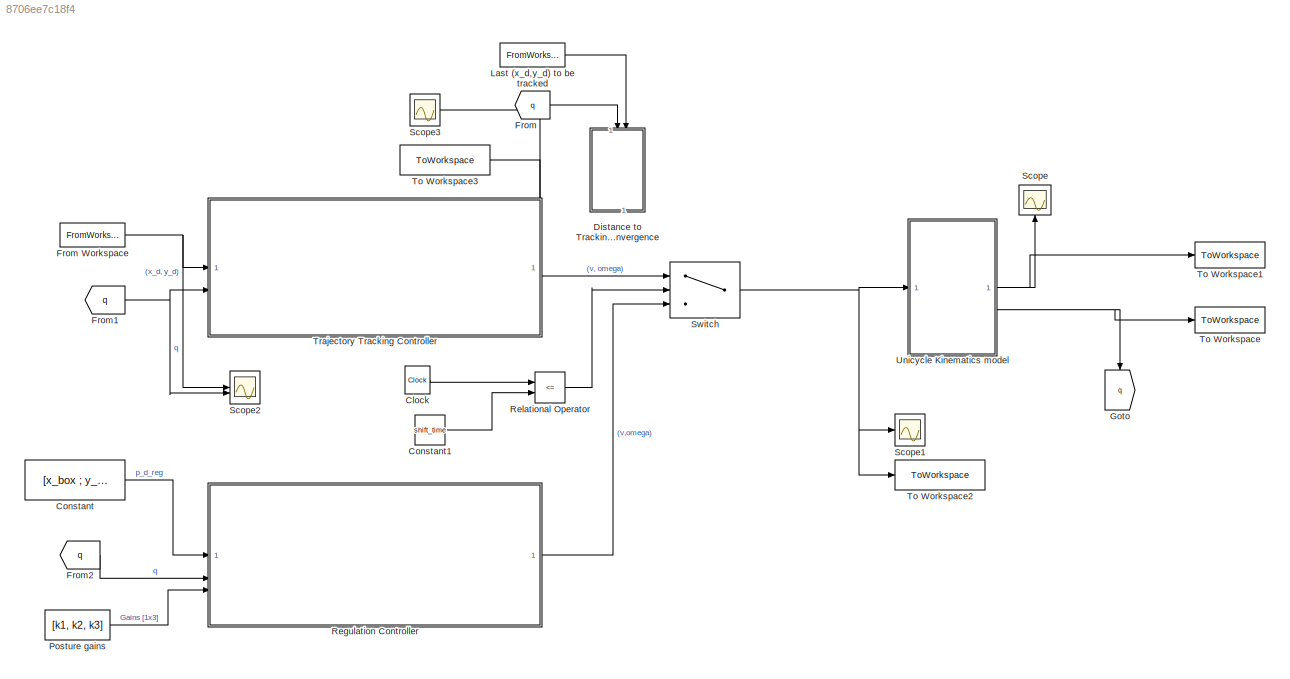
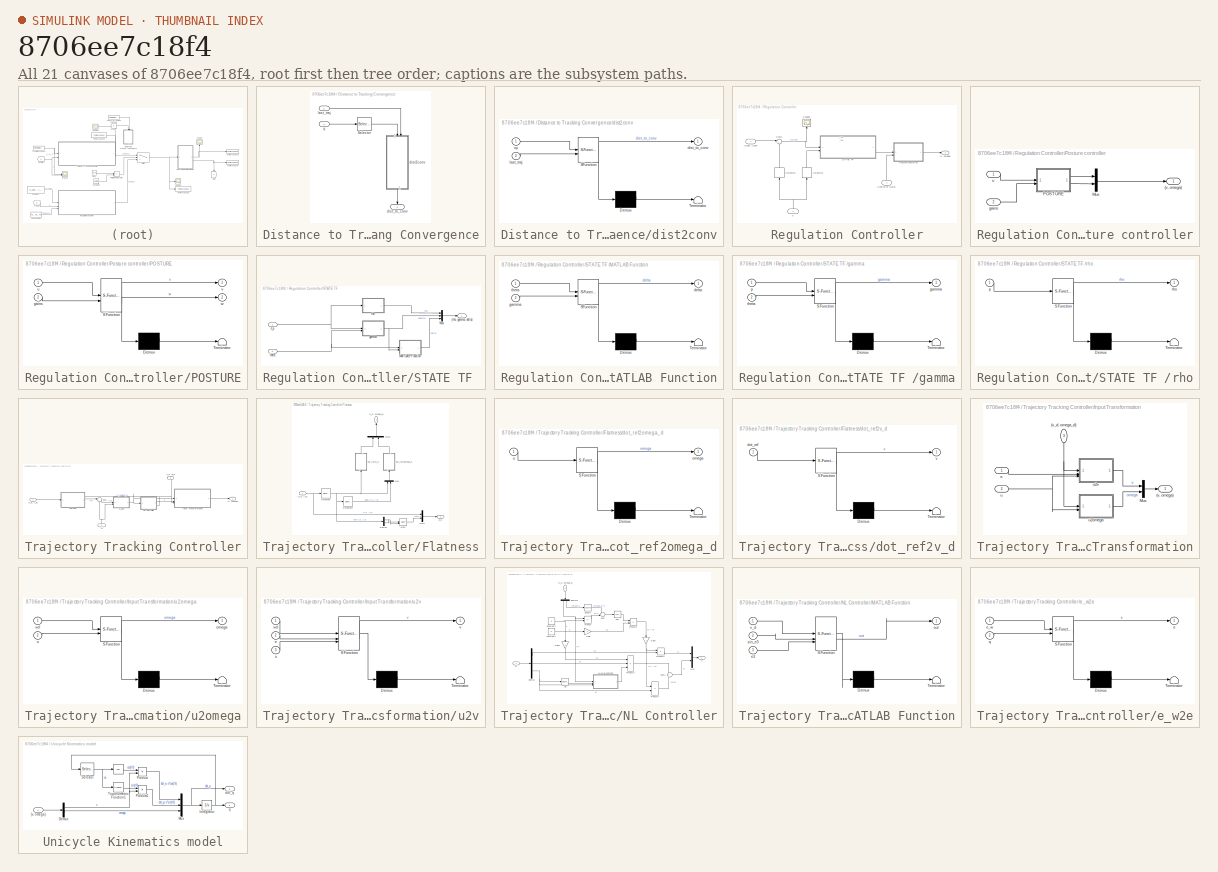
[diagram: thumbnail index - all 21 canvases of the model, root first then tree order]
MODEL slx_8706ee7c18f4
KIND model
CONFIG AbsTol = auto
CONFIG EnableMultiTasking = off
CONFIG FixedStep = Ts
CONFIG MaxStep = auto
CONFIG MinStep = auto
CONFIG RelTol = 1e-3
CONFIG SampleTimeConstraint = Unconstrained
CONFIG SolverName = FixedStepAuto
CONFIG StartTime = 0.0
CONFIG StopTime = 71.3869
BLOCK [Clock] Clock
BLOCK [Constant] Constant
  Value = [x_box ; y_box]
BLOCK [Constant] Constant1
  Value = shift_time
BLOCK [SubSystem] Distance to Tracking Convergence
  Commented = on
  NameLocation = right
BLOCK [Selector] Distance to Tracking Convergence/Selector
  IndexOptions = Index vector (dialog)
  Indices = [1 2]
  InputPortWidth = 3
  OutputSizes = 1
BLOCK [SubSystem] Distance to Tracking Convergence/dist2conv
  ErrorFcn = Stateflow.Translate.translate
  NameLocation = left
  PermitHierarchicalResolution = ExplicitOnly
  SFBlockType = MATLAB Function
  TreatAsAtomicUnit = on
BLOCK [Demux] Distance to Tracking Convergence/dist2conv/ Demux 
  Outputs = 1
BLOCK [S-Function] Distance to Tracking Convergence/dist2conv/ SFunction 
  EnableBusSupport = off
  FunctionName = sf_sfun
  PortCounts = [2 2]
  SFcnIsStateOwnerBlock = off
  SFunctionDeploymentMode = off
  Tag = Stateflow S-Function 5
BLOCK [Terminator] Distance to Tracking Convergence/dist2conv/ Terminator 
BLOCK [Outport] Distance to Tracking Convergence/dist2conv/dist_to_conv
BLOCK [Inport] Distance to Tracking Convergence/dist2conv/last_traj
  Port = 2
BLOCK [Inport] Distance to Tracking Convergence/dist2conv/xy
BLOCK [Outport] Distance to Tracking Convergence/dist_to_conv
  NameLocation = left
BLOCK [Inport] Distance to Tracking Convergence/last_traj
  Port = 2
BLOCK [Inport] Distance to Tracking Convergence/q
BLOCK [From] From
  Commented = on
  GotoTag = q
BLOCK [FromWorkspace] From Workspace
  OutDataTypeStr = double
  SampleTime = -1
  VariableName = ref
BLOCK [From] From1
  GotoTag = q
BLOCK [From] From2
  GotoTag = q
BLOCK [Goto] Goto
  GotoTag = q
  NameLocation = left
BLOCK [FromWorkspace] Last (x_d,y_d) to be tracked
  Commented = on
  NameLocation = top
  OutDataTypeStr = double
  SampleTime = -1
  VariableName = last_traj
BLOCK [Constant] Posture gains
  Value = [k1, k2, k3]
BLOCK [SubSystem] Regulation Controller
BLOCK [Outport] Regulation Controller/(v, omega)
BLOCK [Inport] Regulation Controller/(x_box, y_box)
  NameLocation = top
BLOCK [Inport] Regulation Controller/Controller Gains
  Port = 3
BLOCK [SubSystem] Regulation Controller/Posture controller
BLOCK [Outport] Regulation Controller/Posture controller/(v, omega)
BLOCK [Mux] Regulation Controller/Posture controller/Mux
  DisplayOption = bar
  Inputs = 2
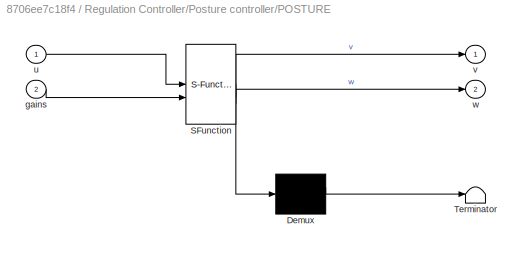
BLOCK [SubSystem] Regulation Controller/Posture controller/POSTURE
  ErrorFcn = Stateflow.Translate.translate
  PermitHierarchicalResolution = ExplicitOnly
  SFBlockType = MATLAB Function
  TreatAsAtomicUnit = on
BLOCK [Demux] Regulation Controller/Posture controller/POSTURE/ Demux 
  Outputs = 1
BLOCK [S-Function] Regulation Controller/Posture controller/POSTURE/ SFunction 
  EnableBusSupport = off
  FunctionName = sf_sfun
  PortCounts = [2 3]
  SFcnIsStateOwnerBlock = off
  SFunctionDeploymentMode = off
  Tag = Stateflow S-Function 8
BLOCK [Terminator] Regulation Controller/Posture controller/POSTURE/ Terminator 
BLOCK [Inport] Regulation Controller/Posture controller/POSTURE/gains
  Port = 2
BLOCK [Inport] Regulation Controller/Posture controller/POSTURE/u
BLOCK [Outport] Regulation Controller/Posture controller/POSTURE/v
BLOCK [Outport] Regulation Controller/Posture controller/POSTURE/w
  Port = 2
BLOCK [Inport] Regulation Controller/Posture controller/gains
  Port = 2
BLOCK [Inport] Regulation Controller/Posture controller/u
BLOCK [SubSystem] Regulation Controller/STATE TF 
BLOCK [Outport] Regulation Controller/STATE TF /(rho, gamma, delta)
BLOCK [SubSystem] Regulation Controller/STATE TF /MATLAB Function
  ErrorFcn = Stateflow.Translate.translate
  PermitHierarchicalResolution = ExplicitOnly
  SFBlockType = MATLAB Function
  TreatAsAtomicUnit = on
BLOCK [Demux] Regulation Controller/STATE TF /MATLAB Function/ Demux 
  Outputs = 1
BLOCK [S-Function] Regulation Controller/STATE TF /MATLAB Function/ SFunction 
  EnableBusSupport = off
  FunctionName = sf_sfun
  PortCounts = [2 2]
  SFcnIsStateOwnerBlock = off
  SFunctionDeploymentMode = off
  Tag = Stateflow S-Function 4
BLOCK [Terminator] Regulation Controller/STATE TF /MATLAB Function/ Terminator 
BLOCK [Outport] Regulation Controller/STATE TF /MATLAB Function/delta
BLOCK [Inport] Regulation Controller/STATE TF /MATLAB Function/gamma
  Port = 2
BLOCK [Inport] Regulation Controller/STATE TF /MATLAB Function/theta
BLOCK [Mux] Regulation Controller/STATE TF /Mux
  DisplayOption = bar
  Inputs = 3
BLOCK [Inport] Regulation Controller/STATE TF /e_p
BLOCK [SubSystem] Regulation Controller/STATE TF /gamma
  ErrorFcn = Stateflow.Translate.translate
  PermitHierarchicalResolution = ExplicitOnly
  SFBlockType = MATLAB Function
  TreatAsAtomicUnit = on
BLOCK [Demux] Regulation Controller/STATE TF /gamma/ Demux 
  Outputs = 1
BLOCK [S-Function] Regulation Controller/STATE TF /gamma/ SFunction 
  EnableBusSupport = off
  FunctionName = sf_sfun
  PortCounts = [2 2]
  SFcnIsStateOwnerBlock = off
  SFunctionDeploymentMode = off
  Tag = Stateflow S-Function 9
BLOCK [Terminator] Regulation Controller/STATE TF /gamma/ Terminator 
BLOCK [Outport] Regulation Controller/STATE TF /gamma/gamma
BLOCK [Inport] Regulation Controller/STATE TF /gamma/p
BLOCK [Inport] Regulation Controller/STATE TF /gamma/theta
  Port = 2
BLOCK [SubSystem] Regulation Controller/STATE TF /rho
  ErrorFcn = Stateflow.Translate.translate
  PermitHierarchicalResolution = ExplicitOnly
  SFBlockType = MATLAB Function
  TreatAsAtomicUnit = on
BLOCK [Demux] Regulation Controller/STATE TF /rho/ Demux 
  Outputs = 1
BLOCK [S-Function] Regulation Controller/STATE TF /rho/ SFunction 
  EnableBusSupport = off
  FunctionName = sf_sfun
  PortCounts = [1 2]
  SFcnIsStateOwnerBlock = off
  SFunctionDeploymentMode = off
  Tag = Stateflow S-Function 10
BLOCK [Terminator] Regulation Controller/STATE TF /rho/ Terminator 
BLOCK [Inport] Regulation Controller/STATE TF /rho/p
BLOCK [Outport] Regulation Controller/STATE TF /rho/rho
BLOCK [Inport] Regulation Controller/STATE TF /theta
  Port = 2
BLOCK [Scope] Regulation Controller/Scope3
  ActiveDisplayYMaximum = 1.6973761395E+6
  ActiveDisplayYMinimum = -1.51842483246E+7
  DataLoggingVariableName = ScopeData3
  Floating = off
  GraphicalSettings = {"GraphicalSettings":{"LegacySettings":true,"Style":{"AxesScalingProperties":{"AlignXAxis":"Center","AlignYAxis":"Center","AutoScaleXAxisLimits":true,"AxesScaling":"Manual","AxesScalingNumUpdates":10,"ScaleAxesLimitsAtStop":false,"XAxisDataRange":100,"YAxisDataRange":80},"Style":{"AxesColor":"[0.0705882352941176 0.0705882352941176 0.0705882352941176]","BackgroundColor":"[0.129411764705882 0.129411...<+803ch>
  LayoutDimensionsString = [1 1]
  MultipleDisplayCache = [{"MaxYLimMag":1.51842483246E+7,"MaxYLimReal":1.6973761395E+6,"MinYLimMag":0,"MinYLimReal":-1.51842483246E+7,"PlotAsMagnitudePhase":false,"ShowGrid":true,"ShowLegend":false,"Title":"%<SignalLabel>","YLabel":""}]
  NameLocation = right
  NumInputPorts = 1
  WasSavedAsWebScope = on
  WindowPosition = [47 38 1874 1011]
BLOCK [Selector] Regulation Controller/Selector2
  IndexOptions = Index vector (dialog)
  Indices = [1 2]
  InputPortWidth = 3
  NameLocation = left
  OutputSizes = 1
BLOCK [Selector] Regulation Controller/Selector3
  IndexOptions = Index vector (dialog)
  Indices = [3]
  InputPortWidth = 3
  NameLocation = left
  OutputSizes = 1
BLOCK [Sum] Regulation Controller/Sum1
  Inputs = |+-
BLOCK [Inport] Regulation Controller/q
  Port = 2
BLOCK [RelationalOperator] Relational Operator
  InputSameDT = off
  Operator = <=
  OutDataTypeStr = boolean
  RndMeth = Simplest
BLOCK [Scope] Scope
  ActiveDisplayYMaximum = 218.29022715041242
  ActiveDisplayYMinimum = -404.1422156418318
  DataLoggingVariableName = ScopeData1
  Floating = off
  GraphicalSettings = {"AxesScalingProperties":{"AlignXAxis":"Center","AlignYAxis":"Center","AutoScaleXAxisLimits":true,"AxesScaling":"Manual","AxesScalingNumUpdates":10,"ExpandOnly":true,"ScaleAxesLimitsAtStop":false,"XAxisDataRange":100,"YAxisDataRange":80},"DisplayProperties":{"ColorOrder":["auto","auto","auto","auto","auto","auto","auto","auto","auto","auto","auto","auto","auto","auto","auto","auto","auto","auto","...<+2397ch>
  MultipleDisplayCache = [{"MaxYLimMag":404.1422156418318,"MaxYLimReal":218.29022715041242,"MinYLimMag":0,"MinYLimReal":-404.1422156418318,"PlotAsMagnitudePhase":false,"ShowGrid":true,"ShowLegend":true,"Title":"%<SignalLabel>","YLabel":""}]
  NameLocation = right
  NumInputPorts = 1
  ScopeFrameLocation = window
  ShowLegend = on
  WasSavedAsWebScope = on
  WindowPosition = [1.000000,49.000000,1536.000000,793.000000,]
BLOCK [Scope] Scope1
  ActiveDisplayYMaximum = 284.37767608565741
  ActiveDisplayYMinimum = -533.5443121855302
  Floating = off
  GraphicalSettings = {"Style":{"BackgroundColor":[0.12941176470588237,0.12941176470588237,0.12941176470588237],"AxesColor":[0.07058823529411765,0.07058823529411765,0.07058823529411765],"LabelsColor":[0.8509803921568627,0.8509803921568627,0.8509803921568627],"PreserveColors":false,"Visible":[true,true],"LineStyle":["-","-"],"LineWidth":[1.5,1.5],"BarWidth":[0.9,0.9],"LineColor":["auto","auto"],"LineFaceAlpha":[1,1],"Li...<+2120ch>
  MultipleDisplayCache = [{"MaxYLimMag":533.5443121855302,"MaxYLimReal":284.37767608565741,"MinYLimMag":0,"MinYLimReal":-533.5443121855302,"PlotAsMagnitudePhase":false,"ShowGrid":true,"ShowLegend":true,"Title":"%<SignalLabel>","YLabel":""}]
  NumInputPorts = 1
  ScopeFrameLocation = window
  ShowLegend = on
  WasSavedAsWebScope = on
  WindowPosition = [657.000000,-201.000000,766.000000,785.000000,]
BLOCK [Scope] Scope2
  ActiveDisplayYMaximum = 1534.0761173534459
  ActiveDisplayYMinimum = -357.06258853785005
  DataLoggingVariableName = ScopeData2
  DisplayFullPath = on
  Floating = off
  GraphicalSettings = {"Style":{"BackgroundColor":[0.12549019607843137,0.12549019607843137,0.12549019607843137],"AxesColor":[0.06666666666666667,0.06666666666666667,0.06666666666666667],"LabelsColor":[0.8509803921568627,0.8509803921568627,0.8509803921568627],"PreserveColors":false,"Visible":[true,true,true,true,true],"LineStyle":["-","-","-","-","-"],"LineWidth":[1.5,1.5,1.5,1.5,1.5],"BarWidth":[0.9,0.9,0.9,0.9,0.9],"L...<+2453ch>
  MultipleDisplayCache = [{"MaxYLimMag":1534.0761173534459,"MaxYLimReal":1534.0761173534459,"MinYLimMag":0,"MinYLimReal":-357.06258853785005,"PlotAsMagnitudePhase":false,"ShowGrid":true,"ShowLegend":true,"Title":"%<SignalLabel>","YLabel":""}]
  NumInputPorts = 2
  OpenAtSimulationStart = on
  ScopeFrameLocation = window
  ShowLegend = on
  WasSavedAsWebScope = on
  WindowPosition = [1.000000,49.000000,1536.000000,793.000000,]
BLOCK [Scope] Scope3
  ActiveDisplayYMaximum = 60.0576659980926
  ActiveDisplayYMinimum = -28.895296222010288
  DataLoggingVariableName = ScopeData4
  Floating = off
  GraphicalSettings = {"AxesScalingProperties":{"AlignXAxis":"Center","AlignYAxis":"Center","AutoScaleXAxisLimits":false,"AxesScaling":"Manual","AxesScalingNumUpdates":10,"ExpandOnly":true,"ScaleAxesLimitsAtStop":false,"XAxisDataRange":100,"YAxisDataRange":80},"DisplayProperties":{"ColorOrder":["auto","auto","auto","auto","auto","auto","auto","auto","auto","auto","auto","auto","auto","auto","auto","auto","auto","auto",...<+2285ch>
  MultipleDisplayCache = [{"MaxYLimMag":60.0576659980926,"MaxYLimReal":60.0576659980926,"MinYLimMag":0,"MinYLimReal":-28.895296222010288,"PlotAsMagnitudePhase":false,"ShowGrid":true,"ShowLegend":false,"Title":"%<SignalLabel>","YLabel":""}]
  NumInputPorts = 1
  ScopeFrameLocation = window
  WasSavedAsWebScope = on
  WindowPosition = [2.000000,50.000000,766.000000,785.000000,]
BLOCK [Switch] Switch
  Criteria = u2 ~= 0
  InputSameDT = off
  SaturateOnIntegerOverflow = off
  Threshold = 110
BLOCK [ToWorkspace] To Workspace
  FixptAsFi = on
  MaxDataPoints = inf
  SampleTime = -1
  SaveFormat = Timeseries
  VariableName = q
BLOCK [ToWorkspace] To Workspace1
  FixptAsFi = on
  MaxDataPoints = inf
  SampleTime = -1
  SaveFormat = Timeseries
  VariableName = qdot
BLOCK [ToWorkspace] To Workspace2
  FixptAsFi = on
  MaxDataPoints = inf
  SampleTime = -1
  SaveFormat = Timeseries
  VariableName = vw
BLOCK [ToWorkspace] To Workspace3
  FixptAsFi = on
  MaxDataPoints = inf
  SampleTime = -1
  SaveFormat = Timeseries
  VariableName = vd_wd
BLOCK [SubSystem] Trajectory Tracking Controller
  PortSchema = {"entries":[{"content":{"sides":[{"content":{"connectorIds":["In1","In2"]},"type":"ConnectorPlacement.EquallySpacedRectSide","uuid":"cd877c46-8e15-457a-8f54-61807ea2ef45"},{"content":{"connectorIds":["Out1"],"side":"RIGHT"},"type":"ConnectorPlacement.EquallySpacedRectSide","uuid":"176f7bf5-d0a0-4212-99fa-33b58d1f7853"},{"content":{"connectorIds":["Out2"],"side":"TOP"},"type":"ConnectorPlacement.Eq...<+252ch>
BLOCK [Outport] Trajectory Tracking Controller/(v, omega)
BLOCK [Inport] Trajectory Tracking Controller/(x_d, y_d)
BLOCK [SubSystem] Trajectory Tracking Controller/Flatness
  PortSchema = {"entries":[{"content":{"sides":[{"content":{"connectorIds":["In1"]},"type":"ConnectorPlacement.EquallySpacedRectSide","uuid":"bc490c8e-5666-439b-9939-62bd84628b1f"},{"content":{"connectorIds":["Out1"],"side":"RIGHT"},"type":"ConnectorPlacement.EquallySpacedRectSide","uuid":"03a20fcc-2a82-4af2-a970-ff3426fda7d9"},{"content":{"connectorIds":["Out2"],"side":"TOP"},"type":"ConnectorPlacement.EquallyS...<+246ch>
BLOCK [Outport] Trajectory Tracking Controller/Flatness/(v_d, omega_d)
  NameLocation = right
  Port = 2
BLOCK [Inport] Trajectory Tracking Controller/Flatness/(x_d, y_d)
BLOCK [Trigonometry] Trajectory Tracking Controller/Flatness/Atan2
  Operator = atan2
BLOCK [Demux] Trajectory Tracking Controller/Flatness/Demux
  Outputs = 2
BLOCK [Derivative] Trajectory Tracking Controller/Flatness/Derivative
BLOCK [Derivative] Trajectory Tracking Controller/Flatness/Derivative1
BLOCK [Mux] Trajectory Tracking Controller/Flatness/Mux
  DisplayOption = bar
  Inputs = 2
  NameLocation = right
BLOCK [Mux] Trajectory Tracking Controller/Flatness/Mux1
  DisplayOption = bar
  Inputs = 2
BLOCK [Mux] Trajectory Tracking Controller/Flatness/Mux2
  DisplayOption = bar
  Inputs = 2
  NameLocation = right
BLOCK [SubSystem] Trajectory Tracking Controller/Flatness/dot_ref2omega_d
  ErrorFcn = Stateflow.Translate.translate
  NameLocation = right
  PermitHierarchicalResolution = ExplicitOnly
  SFBlockType = MATLAB Function
  TreatAsAtomicUnit = on
BLOCK [Demux] Trajectory Tracking Controller/Flatness/dot_ref2omega_d/ Demux 
  Outputs = 1
BLOCK [S-Function] Trajectory Tracking Controller/Flatness/dot_ref2omega_d/ SFunction 
  EnableBusSupport = off
  FunctionName = sf_sfun
  PortCounts = [1 2]
  SFcnIsStateOwnerBlock = off
  SFunctionDeploymentMode = off
  Tag = Stateflow S-Function 1
BLOCK [Terminator] Trajectory Tracking Controller/Flatness/dot_ref2omega_d/ Terminator 
BLOCK [Outport] Trajectory Tracking Controller/Flatness/dot_ref2omega_d/omega
BLOCK [Inport] Trajectory Tracking Controller/Flatness/dot_ref2omega_d/u
BLOCK [SubSystem] Trajectory Tracking Controller/Flatness/dot_ref2v_d
  ErrorFcn = Stateflow.Translate.translate
  NameLocation = right
  PermitHierarchicalResolution = ExplicitOnly
  SFBlockType = MATLAB Function
  TreatAsAtomicUnit = on
BLOCK [Demux] Trajectory Tracking Controller/Flatness/dot_ref2v_d/ Demux 
  Outputs = 1
BLOCK [S-Function] Trajectory Tracking Controller/Flatness/dot_ref2v_d/ SFunction 
  EnableBusSupport = off
  FunctionName = sf_sfun
  PortCounts = [1 2]
  SFcnIsStateOwnerBlock = off
  SFunctionDeploymentMode = off
  Tag = Stateflow S-Function 2
BLOCK [Terminator] Trajectory Tracking Controller/Flatness/dot_ref2v_d/ Terminator 
BLOCK [Inport] Trajectory Tracking Controller/Flatness/dot_ref2v_d/dot_ref
BLOCK [Outport] Trajectory Tracking Controller/Flatness/dot_ref2v_d/v
BLOCK [Outport] Trajectory Tracking Controller/Flatness/q_d
BLOCK [SubSystem] Trajectory Tracking Controller/Input Transformation
  PortSchema = {"entries":[{"content":{"sides":[{"content":{"connectorIds":["In1","In2"]},"type":"ConnectorPlacement.EquallySpacedRectSide","uuid":"4cbebdc1-8913-4bb0-9524-d854c819f784"},{"content":{"connectorIds":["Out1"],"side":"RIGHT"},"type":"ConnectorPlacement.EquallySpacedRectSide","uuid":"178a2b4a-0c33-47f3-8be3-bd76dfc47961"},{"content":{"connectorIds":["In3"],"side":"TOP"},"type":"ConnectorPlacement.Equ...<+251ch>
BLOCK [Outport] Trajectory Tracking Controller/Input Transformation/(v, omega)
BLOCK [Inport] Trajectory Tracking Controller/Input Transformation/(v_d, omega_d)
  NameLocation = left
  Port = 3
BLOCK [Mux] Trajectory Tracking Controller/Input Transformation/Mux
  DisplayOption = bar
  Inputs = 2
BLOCK [Inport] Trajectory Tracking Controller/Input Transformation/e
BLOCK [Inport] Trajectory Tracking Controller/Input Transformation/u
  Port = 2
BLOCK [SubSystem] Trajectory Tracking Controller/Input Transformation/u2omega
  ErrorFcn = Stateflow.Translate.translate
  PermitHierarchicalResolution = ExplicitOnly
  SFBlockType = MATLAB Function
  TreatAsAtomicUnit = on
BLOCK [Demux] Trajectory Tracking Controller/Input Transformation/u2omega/ Demux 
  Outputs = 1
BLOCK [S-Function] Trajectory Tracking Controller/Input Transformation/u2omega/ SFunction 
  EnableBusSupport = off
  FunctionName = sf_sfun
  PortCounts = [2 2]
  SFcnIsStateOwnerBlock = off
  SFunctionDeploymentMode = off
  Tag = Stateflow S-Function 6
BLOCK [Terminator] Trajectory Tracking Controller/Input Transformation/u2omega/ Terminator 
BLOCK [Outport] Trajectory Tracking Controller/Input Transformation/u2omega/omega
BLOCK [Inport] Trajectory Tracking Controller/Input Transformation/u2omega/u
  Port = 2
BLOCK [Inport] Trajectory Tracking Controller/Input Transformation/u2omega/vel
BLOCK [SubSystem] Trajectory Tracking Controller/Input Transformation/u2v
  ErrorFcn = Stateflow.Translate.translate
  PermitHierarchicalResolution = ExplicitOnly
  SFBlockType = MATLAB Function
  TreatAsAtomicUnit = on
BLOCK [Demux] Trajectory Tracking Controller/Input Transformation/u2v/ Demux 
  Outputs = 1
BLOCK [S-Function] Trajectory Tracking Controller/Input Transformation/u2v/ SFunction 
  EnableBusSupport = off
  FunctionName = sf_sfun
  PortCounts = [3 2]
  SFcnIsStateOwnerBlock = off
  SFunctionDeploymentMode = off
  Tag = Stateflow S-Function 7
BLOCK [Terminator] Trajectory Tracking Controller/Input Transformation/u2v/ Terminator 
BLOCK [Inport] Trajectory Tracking Controller/Input Transformation/u2v/e
  Port = 2
BLOCK [Inport] Trajectory Tracking Controller/Input Transformation/u2v/u
  Port = 3
BLOCK [Outport] Trajectory Tracking Controller/Input Transformation/u2v/v
BLOCK [Inport] Trajectory Tracking Controller/Input Transformation/u2v/vel
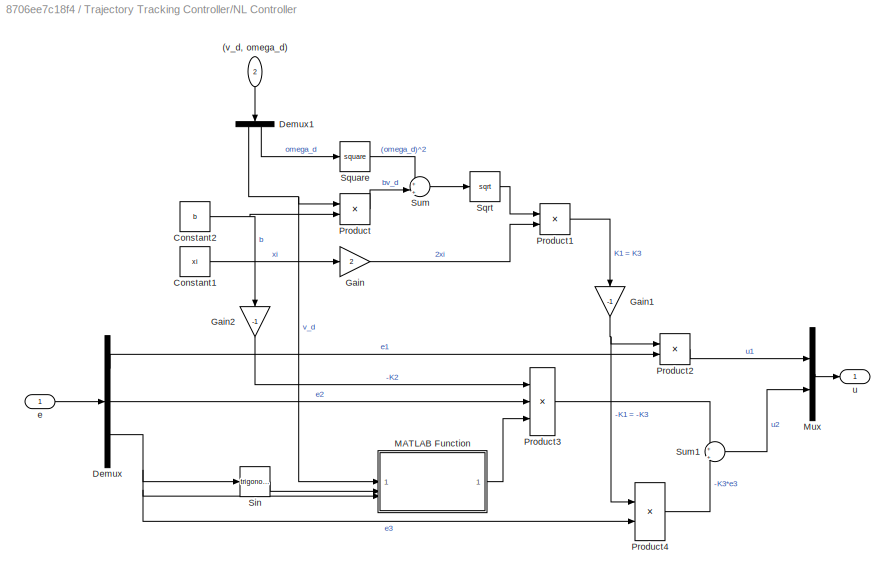
BLOCK [SubSystem] Trajectory Tracking Controller/NL Controller
  PortSchema = {"entries":[{"content":{"sides":[{"content":{"connectorIds":["In1"]},"type":"ConnectorPlacement.EquallySpacedRectSide","uuid":"111a75b0-1720-417b-bb3b-4eef3b94ce3e"},{"content":{"connectorIds":["Out1"],"side":"RIGHT"},"type":"ConnectorPlacement.EquallySpacedRectSide","uuid":"fd08faf2-16f9-4b1a-8555-2743d2eb322e"},{"content":{"connectorIds":["In2"],"side":"TOP"},"type":"ConnectorPlacement.EquallySp...<+245ch>
BLOCK [Inport] Trajectory Tracking Controller/NL Controller/(v_d, omega_d)
  NameLocation = left
  Port = 2
BLOCK [Constant] Trajectory Tracking Controller/NL Controller/Constant1
  Value = xi
BLOCK [Constant] Trajectory Tracking Controller/NL Controller/Constant2
  Value = b
BLOCK [Demux] Trajectory Tracking Controller/NL Controller/Demux
  Outputs = 3
BLOCK [Demux] Trajectory Tracking Controller/NL Controller/Demux1
  NameLocation = left
  Outputs = 2
BLOCK [Gain] Trajectory Tracking Controller/NL Controller/Gain
  Gain = 2
BLOCK [Gain] Trajectory Tracking Controller/NL Controller/Gain1
  Gain = -1
  NameLocation = left
BLOCK [Gain] Trajectory Tracking Controller/NL Controller/Gain2
  Gain = -1
  NameLocation = left
BLOCK [SubSystem] Trajectory Tracking Controller/NL Controller/MATLAB Function
  ErrorFcn = Stateflow.Translate.translate
  PermitHierarchicalResolution = ExplicitOnly
  SFBlockType = MATLAB Function
  TreatAsAtomicUnit = on
BLOCK [Demux] Trajectory Tracking Controller/NL Controller/MATLAB Function/ Demux 
  Outputs = 1
BLOCK [S-Function] Trajectory Tracking Controller/NL Controller/MATLAB Function/ SFunction 
  EnableBusSupport = off
  FunctionName = sf_sfun
  PortCounts = [3 2]
  SFcnIsStateOwnerBlock = off
  SFunctionDeploymentMode = off
  Tag = Stateflow S-Function 11
BLOCK [Terminator] Trajectory Tracking Controller/NL Controller/MATLAB Function/ Terminator 
BLOCK [Inport] Trajectory Tracking Controller/NL Controller/MATLAB Function/e3
  Port = 3
BLOCK [Outport] Trajectory Tracking Controller/NL Controller/MATLAB Function/out
BLOCK [Inport] Trajectory Tracking Controller/NL Controller/MATLAB Function/sin_e3
  Port = 2
BLOCK [Inport] Trajectory Tracking Controller/NL Controller/MATLAB Function/v_d
BLOCK [Mux] Trajectory Tracking Controller/NL Controller/Mux
  DisplayOption = bar
  Inputs = 2
BLOCK [Product] Trajectory Tracking Controller/NL Controller/Product
BLOCK [Product] Trajectory Tracking Controller/NL Controller/Product1
BLOCK [Product] Trajectory Tracking Controller/NL Controller/Product2
BLOCK [Product] Trajectory Tracking Controller/NL Controller/Product3
  Inputs = 3
BLOCK [Product] Trajectory Tracking Controller/NL Controller/Product4
BLOCK [Trigonometry] Trajectory Tracking Controller/NL Controller/Sin
BLOCK [Sqrt] Trajectory Tracking Controller/NL Controller/Sqrt
BLOCK [Math] Trajectory Tracking Controller/NL Controller/Square
  Operator = square
BLOCK [Sum] Trajectory Tracking Controller/NL Controller/Sum
  Inputs = +|+
BLOCK [Sum] Trajectory Tracking Controller/NL Controller/Sum1
  Inputs = +|+
BLOCK [Inport] Trajectory Tracking Controller/NL Controller/e
BLOCK [Outport] Trajectory Tracking Controller/NL Controller/u
BLOCK [Sum] Trajectory Tracking Controller/Sum
  Inputs = |+-
BLOCK [SubSystem] Trajectory Tracking Controller/e_w2e
  ErrorFcn = Stateflow.Translate.translate
  PermitHierarchicalResolution = ExplicitOnly
  SFBlockType = MATLAB Function
  TreatAsAtomicUnit = on
BLOCK [Demux] Trajectory Tracking Controller/e_w2e/ Demux 
  Outputs = 1
BLOCK [S-Function] Trajectory Tracking Controller/e_w2e/ SFunction 
  EnableBusSupport = off
  FunctionName = sf_sfun
  PortCounts = [2 2]
  SFcnIsStateOwnerBlock = off
  SFunctionDeploymentMode = off
  Tag = Stateflow S-Function 3
BLOCK [Terminator] Trajectory Tracking Controller/e_w2e/ Terminator 
BLOCK [Outport] Trajectory Tracking Controller/e_w2e/e
BLOCK [Inport] Trajectory Tracking Controller/e_w2e/e_w
BLOCK [Inport] Trajectory Tracking Controller/e_w2e/q
  Port = 2
BLOCK [Inport] Trajectory Tracking Controller/q
  Port = 2
BLOCK [Outport] Trajectory Tracking Controller/v_d, w_d
  Port = 2
BLOCK [SubSystem] Unicycle Kinematics model
BLOCK [Trigonometry] Unicycle Kinematics model/ 
  Operator = cos
BLOCK [Inport] Unicycle Kinematics model/(v, omega)
BLOCK [Demux] Unicycle Kinematics model/Demux
  Outputs = 2
BLOCK [Integrator] Unicycle Kinematics model/Integrator
  InitialCondition = [x0; y0; theta0]
BLOCK [Mux] Unicycle Kinematics model/Mux
  DisplayOption = bar
  Inputs = 3
BLOCK [Product] Unicycle Kinematics model/Product
BLOCK [Product] Unicycle Kinematics model/Product1
BLOCK [Selector] Unicycle Kinematics model/Selector
  IndexOptions = Index vector (dialog)
  Indices = [3]
  InputPortWidth = 3
  OutputSizes = 1
BLOCK [Trigonometry] Unicycle Kinematics model/Trigonometric Function1
BLOCK [Outport] Unicycle Kinematics model/dot_q
BLOCK [Outport] Unicycle Kinematics model/q
  Port = 2
ANNOTATION Regulation Controller: _reg
LINE Clock:1 -> Relational Operator:1
LINE Constant1:1 -> Relational Operator:2
LINE Constant:1 -> Regulation Controller:1
LINE Distance to Tracking Convergence/Selector:1 -> Distance to Tracking Convergence/dist2conv:1
LINE Distance to Tracking Convergence/dist2conv:1 -> Distance to Tracking Convergence/dist_to_conv:1
LINE Distance to Tracking Convergence/last_traj:1 -> Distance to Tracking Convergence/dist2conv:2
LINE Distance to Tracking Convergence/q:1 -> Distance to Tracking Convergence/Selector:1
NET From Workspace:1 -> Scope2:1, Trajectory Tracking Controller:1
NET From1:1 -> Scope2:2, Trajectory Tracking Controller:2
LINE From2:1 -> Regulation Controller:2
LINE From:1 -> Distance to Tracking Convergence:1
LINE Last (x_d,y_d) to be tracked:1 -> Distance to Tracking Convergence:2
LINE Posture gains:1 -> Regulation Controller:3
LINE Regulation Controller/(x_box, y_box):1 -> Regulation Controller/Sum1:1
LINE Regulation Controller/Controller Gains:1 -> Regulation Controller/Posture controller:2
LINE Regulation Controller/Posture controller/Mux:1 -> Regulation Controller/Posture controller/(v, omega):1
LINE Regulation Controller/Posture controller/POSTURE:1 -> Regulation Controller/Posture controller/Mux:1
LINE Regulation Controller/Posture controller/POSTURE:2 -> Regulation Controller/Posture controller/Mux:2
LINE Regulation Controller/Posture controller/gains:1 -> Regulation Controller/Posture controller/POSTURE:2
LINE Regulation Controller/Posture controller/u:1 -> Regulation Controller/Posture controller/POSTURE:1
LINE Regulation Controller/Posture controller:1 -> Regulation Controller/(v, omega):1
LINE Regulation Controller/STATE TF /MATLAB Function:1 -> Regulation Controller/STATE TF /Mux:3
LINE Regulation Controller/STATE TF /Mux:1 -> Regulation Controller/STATE TF /(rho, gamma, delta):1
NET Regulation Controller/STATE TF /e_p:1 -> Regulation Controller/STATE TF /gamma:1, Regulation Controller/STATE TF /rho:1
NET Regulation Controller/STATE TF /gamma:1 -> Regulation Controller/STATE TF /MATLAB Function:2, Regulation Controller/STATE TF /Mux:2
LINE Regulation Controller/STATE TF /rho:1 -> Regulation Controller/STATE TF /Mux:1
NET Regulation Controller/STATE TF /theta:1 -> Regulation Controller/STATE TF /MATLAB Function:1, Regulation Controller/STATE TF /gamma:2
LINE Regulation Controller/STATE TF :1 -> Regulation Controller/Posture controller:1
LINE Regulation Controller/Selector2:1 -> Regulation Controller/Sum1:2
LINE Regulation Controller/Selector3:1 -> Regulation Controller/STATE TF :2
NET Regulation Controller/Sum1:1 -> Regulation Controller/STATE TF :1, Regulation Controller/Scope3:1
NET Regulation Controller/q:1 -> Regulation Controller/Selector2:1, Regulation Controller/Selector3:1
LINE Regulation Controller:1 -> Switch:3
LINE Relational Operator:1 -> Switch:2
NET Switch:1 -> Scope1:1, To Workspace2:1, Unicycle Kinematics model:1
LINE Trajectory Tracking Controller/(x_d, y_d):1 -> Trajectory Tracking Controller/Flatness:1
NET Trajectory Tracking Controller/Flatness/(x_d, y_d):1 -> Trajectory Tracking Controller/Flatness/Derivative:1, Trajectory Tracking Controller/Flatness/Mux1:1
LINE Trajectory Tracking Controller/Flatness/Atan2:1 -> Trajectory Tracking Controller/Flatness/Mux1:2
LINE Trajectory Tracking Controller/Flatness/Demux:1 -> Trajectory Tracking Controller/Flatness/Atan2:2
LINE Trajectory Tracking Controller/Flatness/Demux:2 -> Trajectory Tracking Controller/Flatness/Atan2:1
LINE Trajectory Tracking Controller/Flatness/Derivative1:1 -> Trajectory Tracking Controller/Flatness/Mux:2
NET Trajectory Tracking Controller/Flatness/Derivative:1 -> Trajectory Tracking Controller/Flatness/Demux:1, Trajectory Tracking Controller/Flatness/Derivative1:1, Trajectory Tracking Controller/Flatness/Mux:1, Trajectory Tracking Controller/Flatness/dot_ref2v_d:1
LINE Trajectory Tracking Controller/Flatness/Mux1:1 -> Trajectory Tracking Controller/Flatness/q_d:1
LINE Trajectory Tracking Controller/Flatness/Mux2:1 -> Trajectory Tracking Controller/Flatness/(v_d, omega_d):1
LINE Trajectory Tracking Controller/Flatness/Mux:1 -> Trajectory Tracking Controller/Flatness/dot_ref2omega_d:1
LINE Trajectory Tracking Controller/Flatness/dot_ref2omega_d:1 -> Trajectory Tracking Controller/Flatness/Mux2:2
LINE Trajectory Tracking Controller/Flatness/dot_ref2v_d:1 -> Trajectory Tracking Controller/Flatness/Mux2:1
LINE Trajectory Tracking Controller/Flatness:1 -> Trajectory Tracking Controller/Sum:1
NET Trajectory Tracking Controller/Flatness:2 -> Trajectory Tracking Controller/Input Transformation:3, Trajectory Tracking Controller/NL Controller:2, Trajectory Tracking Controller/v_d, w_d:1
NET Trajectory Tracking Controller/Input Transformation/(v_d, omega_d):1 -> Trajectory Tracking Controller/Input Transformation/u2omega:1, Trajectory Tracking Controller/Input Transformation/u2v:1
LINE Trajectory Tracking Controller/Input Transformation/Mux:1 -> Trajectory Tracking Controller/Input Transformation/(v, omega):1
LINE Trajectory Tracking Controller/Input Transformation/e:1 -> Trajectory Tracking Controller/Input Transformation/u2v:2
LINE Trajectory Tracking Controller/Input Transformation/u2omega:1 -> Trajectory Tracking Controller/Input Transformation/Mux:2
LINE Trajectory Tracking Controller/Input Transformation/u2v:1 -> Trajectory Tracking Controller/Input Transformation/Mux:1
NET Trajectory Tracking Controller/Input Transformation/u:1 -> Trajectory Tracking Controller/Input Transformation/u2omega:2, Trajectory Tracking Controller/Input Transformation/u2v:3
LINE Trajectory Tracking Controller/Input Transformation:1 -> Trajectory Tracking Controller/(v, omega):1
LINE Trajectory Tracking Controller/NL Controller/(v_d, omega_d):1 -> Trajectory Tracking Controller/NL Controller/Demux1:1
LINE Trajectory Tracking Controller/NL Controller/Constant1:1 -> Trajectory Tracking Controller/NL Controller/Gain:1
NET Trajectory Tracking Controller/NL Controller/Constant2:1 -> Trajectory Tracking Controller/NL Controller/Gain2:1, Trajectory Tracking Controller/NL Controller/Product:2
NET Trajectory Tracking Controller/NL Controller/Demux1:1 -> Trajectory Tracking Controller/NL Controller/MATLAB Function:1, Trajectory Tracking Controller/NL Controller/Product:1
LINE Trajectory Tracking Controller/NL Controller/Demux1:2 -> Trajectory Tracking Controller/NL Controller/Square:1
LINE Trajectory Tracking Controller/NL Controller/Demux:1 -> Trajectory Tracking Controller/NL Controller/Product2:2
LINE Trajectory Tracking Controller/NL Controller/Demux:2 -> Trajectory Tracking Controller/NL Controller/Product3:2
NET Trajectory Tracking Controller/NL Controller/Demux:3 -> Trajectory Tracking Controller/NL Controller/MATLAB Function:3, Trajectory Tracking Controller/NL Controller/Product4:2, Trajectory Tracking Controller/NL Controller/Sin:1
NET Trajectory Tracking Controller/NL Controller/Gain1:1 -> Trajectory Tracking Controller/NL Controller/Product2:1, Trajectory Tracking Controller/NL Controller/Product4:1
LINE Trajectory Tracking Controller/NL Controller/Gain2:1 -> Trajectory Tracking Controller/NL Controller/Product3:1
LINE Trajectory Tracking Controller/NL Controller/Gain:1 -> Trajectory Tracking Controller/NL Controller/Product1:2
LINE Trajectory Tracking Controller/NL Controller/MATLAB Function:1 -> Trajectory Tracking Controller/NL Controller/Product3:3
LINE Trajectory Tracking Controller/NL Controller/Mux:1 -> Trajectory Tracking Controller/NL Controller/u:1
LINE Trajectory Tracking Controller/NL Controller/Product1:1 -> Trajectory Tracking Controller/NL Controller/Gain1:1
LINE Trajectory Tracking Controller/NL Controller/Product2:1 -> Trajectory Tracking Controller/NL Controller/Mux:1
LINE Trajectory Tracking Controller/NL Controller/Product3:1 -> Trajectory Tracking Controller/NL Controller/Sum1:1
LINE Trajectory Tracking Controller/NL Controller/Product4:1 -> Trajectory Tracking Controller/NL Controller/Sum1:2
LINE Trajectory Tracking Controller/NL Controller/Product:1 -> Trajectory Tracking Controller/NL Controller/Sum:2
LINE Trajectory Tracking Controller/NL Controller/Sin:1 -> Trajectory Tracking Controller/NL Controller/MATLAB Function:2
LINE Trajectory Tracking Controller/NL Controller/Sqrt:1 -> Trajectory Tracking Controller/NL Controller/Product1:1
LINE Trajectory Tracking Controller/NL Controller/Square:1 -> Trajectory Tracking Controller/NL Controller/Sum:1
LINE Trajectory Tracking Controller/NL Controller/Sum1:1 -> Trajectory Tracking Controller/NL Controller/Mux:2
LINE Trajectory Tracking Controller/NL Controller/Sum:1 -> Trajectory Tracking Controller/NL Controller/Sqrt:1
LINE Trajectory Tracking Controller/NL Controller/e:1 -> Trajectory Tracking Controller/NL Controller/Demux:1
LINE Trajectory Tracking Controller/NL Controller:1 -> Trajectory Tracking Controller/Input Transformation:2
LINE Trajectory Tracking Controller/Sum:1 -> Trajectory Tracking Controller/e_w2e:1
NET Trajectory Tracking Controller/e_w2e:1 -> Trajectory Tracking Controller/Input Transformation:1, Trajectory Tracking Controller/NL Controller:1
NET Trajectory Tracking Controller/q:1 -> Trajectory Tracking Controller/Sum:2, Trajectory Tracking Controller/e_w2e:2
LINE Trajectory Tracking Controller:1 -> Switch:1
NET Trajectory Tracking Controller:2 -> Scope3:1, To Workspace3:1
LINE Unicycle Kinematics model/ :1 -> Unicycle Kinematics model/Product:1
LINE Unicycle Kinematics model/(v, omega):1 -> Unicycle Kinematics model/Demux:1
NET Unicycle Kinematics model/Demux:1 -> Unicycle Kinematics model/Product1:2, Unicycle Kinematics model/Product:2
LINE Unicycle Kinematics model/Demux:2 -> Unicycle Kinematics model/Mux:3
NET Unicycle Kinematics model/Integrator:1 -> Unicycle Kinematics model/Selector:1, Unicycle Kinematics model/q:1
NET Unicycle Kinematics model/Mux:1 -> Unicycle Kinematics model/Integrator:1, Unicycle Kinematics model/dot_q:1
LINE Unicycle Kinematics model/Product1:1 -> Unicycle Kinematics model/Mux:2
LINE Unicycle Kinematics model/Product:1 -> Unicycle Kinematics model/Mux:1
NET Unicycle Kinematics model/Selector:1 -> Unicycle Kinematics model/ :1, Unicycle Kinematics model/Trigonometric Function1:1
LINE Unicycle Kinematics model/Trigonometric Function1:1 -> Unicycle Kinematics model/Product1:1
NET Unicycle Kinematics model:1 -> Scope:1, To Workspace1:1
NET Unicycle Kinematics model:2 -> Goto:1, To Workspace:1
note: NET lines group one-source signal fan-out (src -> all destinations, sorted); 1:1 wires keep LINE
CHART Trajectory Tracking Controller/Flatness/dot_ref2v_d states=1 transitions=1
  STATE_LABEL 'eML_blk_kernel()'
  STATE_LABEL 'SCRIPT:\nfunction v = fcn(dot_ref)\n    dot_x = dot_ref(1);\n    dot_y = dot_ref(2);\n\n    v = sqrt(dot_x^2 + dot_y^2);\n\n    v_min = 1e-6;\n    if ~isfinite(v) || v < v_min\n        v = v_min;\n    end\nend\n'
CHART Trajectory Tracking Controller/e_w2e states=1 transitions=1
  STATE_LABEL 'eML_blk_kernel()'
  STATE_LABEL 'SCRIPT:\nfunction e = fcn(e_w, q)\n    theta = q(3);\n\n    R = [cos(theta) sin(theta) 0; \n        -sin(theta) cos(theta) 0;\n             0          0      1];\n\n    e = R*e_w; \n'
CHART Regulation Controller/STATE TF /MATLAB Function states=1 transitions=1
  STATE_LABEL 'eML_blk_kernel()'
  STATE_LABEL 'SCRIPT:\nfunction delta = fcn(theta, gamma)\n\n\n\ndelta = theta + gamma;\nend\n'
CHART Distance to 
Tracking Convergence/dist2conv states=1 transitions=1
  STATE_LABEL 'eML_blk_kernel()'
  STATE_LABEL 'SCRIPT:\nfunction dist_to_conv = fcn(xy, last_traj)\n\nx_traj = last_traj(:,1);\ny_traj = last_traj(:,end);\n\nx = xy(1);\ny = xy(2);\n\nx_diff = abs(x-x_traj);\ny_diff = abs(y-y_traj);\n\ndiff = [x_diff; y_diff];\n\ndist_to_conv = norm(diff);\n\n\n'
CHART Trajectory Tracking Controller/Input Transformation/u2omega states=1 transitions=1
  STATE_LABEL 'eML_blk_kernel()'
  STATE_LABEL 'SCRIPT:\nfunction omega = fcn(vel,u)\n    omega_d = vel(2);\n\n    omega = omega_d-u(2);\n\n'
CHART Trajectory Tracking Controller/Input Transformation/u2v states=1 transitions=1
  STATE_LABEL 'eML_blk_kernel()'
  STATE_LABEL 'SCRIPT:\nfunction v = fcn(vel, e, u)\n v_d = vel(1);\n\n v = v_d*cos(e(3))-u(1);\n'
CHART Regulation Controller/Posture controller/POSTURE states=1 transitions=1
  STATE_LABEL 'eML_blk_kernel()'
  STATE_LABEL 'SCRIPT:\nfunction [v,w]= fcn(u, gains)\n\nK1 = gains(1);\nK2 = gains(2);\nK3 = gains(3);\n\nrho = u(1);\ngamma = u(2);\ndelta = u(3);\n\n\nv = K1 * rho * cos(gamma);\n\nif abs(gamma) < 1e-6\n    s = 1;                 % sin(gamma)/gamma -> 1\nelse\n    s = sin(gamma)/gamma;\nend\nw = K2*gamma + K1*(s*cos(gamma))*(gamma + K3*delta);\n\n'
CHART Regulation Controller/STATE TF /gamma states=1 transitions=1
  STATE_LABEL 'eML_blk_kernel()'
  STATE_LABEL 'SCRIPT:\nfunction gamma = fcn(p, theta)\n\ne_x = -p(1);\ne_y = -p(2);\n\ngamma = atan2(e_y,e_x) + pi - theta;\n\nend'
CHART Regulation Controller/STATE TF /rho states=1 transitions=1
  STATE_LABEL 'eML_blk_kernel()'
  STATE_LABEL 'SCRIPT:\nfunction rho = fcn(p)\ne_x = -p(1);\ne_y = -p(2);\nrho = sqrt(e_x^2 + e_y^2);\nend\n'
CHART Trajectory Tracking Controller/NL Controller/MATLAB Function states=1 transitions=1
  STATE_LABEL 'eML_blk_kernel()'
  STATE_LABEL 'SCRIPT:\nfunction out = sinc_term(v_d, sin_e3, e3)\n\n    if abs(e3) < 1e-5\n        out = v_d * 1; \n    else\n        out = v_d * (sin_e3 / e3);\n    end\nend'
CHART Trajectory Tracking Controller/Flatness/dot_ref2omega_d states=1 transitions=1
  STATE_LABEL 'eML_blk_kernel()'
  STATE_LABEL 'SCRIPT:\nfunction omega = fcn(u)\n    dot_x  = u(1);\n    dot_y  = u(2);\n    ddot_x = u(3);\n    ddot_y = u(4);\n\n    den = dot_x^2 + dot_y^2;\n\n    % Guard against singularity / non-finite inputs\n    eps_den = 1e-6;\n    if ~isfinite(den) || den < eps_den\n        omega = 0;             % safe default at standstill\n        return;\n    end\n\n    num = dot_x*ddot_y - dot_y*ddot_x;\n\n    if ~isfinite(num)\n   ...<+253ch>'
CHART  states=0 transitions=0
CHART  states=0 transitions=0
CHART  states=0 transitions=0
CHART  states=0 transitions=0
CHART  states=0 transitions=0
CHART  states=0 transitions=0
CHART  states=0 transitions=0
CHART  states=0 transitions=0
CHART  states=0 transitions=0
CHART  states=0 transitions=0
CHART  states=0 transitions=0
